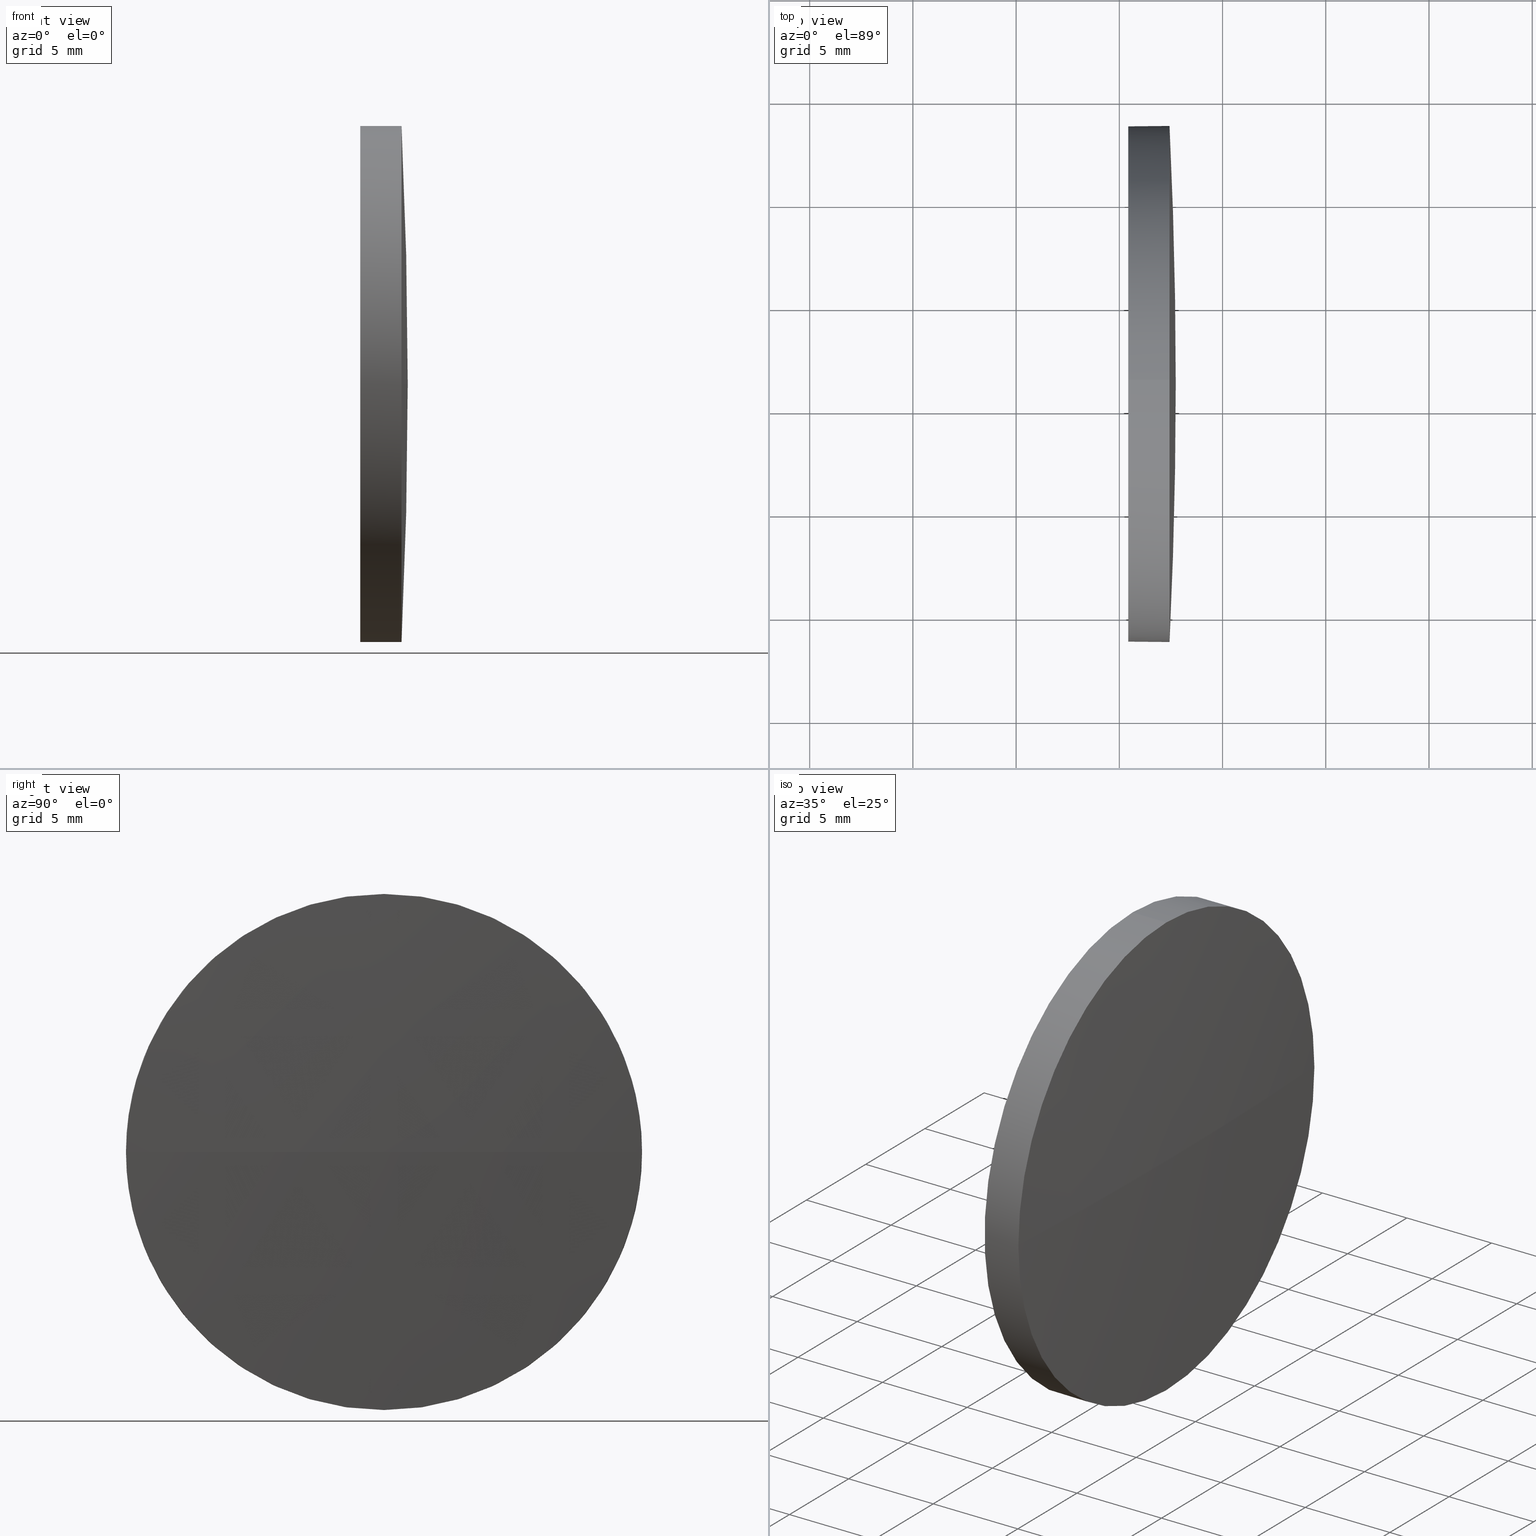
[diagram: canonical four-view strip — front | top / right | iso, engineering-drawing reading convention]
A machine part, canonical four-view strip (front | top / right | iso — engineering-drawing reading convention). The complete STEP part file that produces these views, byte-faithful:
ISO-10303-21;
HEADER;
FILE_DESCRIPTION (( 'STEP AP214' ),
    '1' );
FILE_NAME ('100223.STEP',
    '2019-05-24T03:11:32',
    ( '' ),
    ( '' ),
    'SwSTEP 2.0',
    'SolidWorks 2016',
    '' );
FILE_SCHEMA (( 'AUTOMOTIVE_DESIGN' ));
ENDSEC;

DATA;
#1 = CARTESIAN_POINT ( 'NONE',  ( 217.1658760232263000, 56.21778746480520500, 0.0000000000000000000 ) ) ;
#2 = DIRECTION ( 'NONE',  ( -1.000000000000000000, -0.0000000000000000000, -0.0000000000000000000 ) ) ;
#3 = EDGE_LOOP ( 'NONE', ( #134, #26, #88, #142 ) ) ;
#4 = DIRECTION ( 'NONE',  ( 0.0000000000000000000, 0.0000000000000000000, 1.000000000000000000 ) ) ;
#5 = DIRECTION ( 'NONE',  ( -0.0000000000000000000, 0.0000000000000000000, -1.000000000000000000 ) ) ;
#6 = STYLED_ITEM ( 'NONE', ( #151 ), #131 ) ;
#7 = ORIENTED_EDGE ( 'NONE', *, *, #44, .T. ) ;
#8 = DIRECTION ( 'NONE',  ( 0.0000000000000000000, 0.0000000000000000000, 1.000000000000000000 ) ) ;
#9 = DIRECTION ( 'NONE',  ( 0.0000000000000000000, 0.0000000000000000000, 1.000000000000000000 ) ) ;
#10 = DIRECTION ( 'NONE',  ( -1.000000000000000000, -0.0000000000000000000, -0.0000000000000000000 ) ) ;
#11 = EDGE_LOOP ( 'NONE', ( #125, #179, #38, #167 ) ) ;
#12 = CIRCLE ( 'NONE', #153, 12.50000000000000400 ) ;
#13 = AXIS2_PLACEMENT_3D ( 'NONE', #105, #4, #120 ) ;
#14 = FACE_OUTER_BOUND ( 'NONE', #3, .T. ) ;
#15 = CARTESIAN_POINT ( 'NONE',  ( 473.4034351114584600, 56.21778746480561000, -12.50000000000000400 ) ) ;
#16 = PRODUCT_RELATED_PRODUCT_CATEGORY ( 'part', '', ( #180 ) ) ;
#17 = CARTESIAN_POINT ( 'NONE',  ( 477.4325426898954600, 43.71778746480575300, -1.530808498934124900E-015 ) ) ;
#18 =( LENGTH_UNIT ( ) NAMED_UNIT ( * ) SI_UNIT ( .MILLI., .METRE. ) );
#19 = CARTESIAN_POINT ( 'NONE',  ( 477.4325426898954600, 56.21778746480561000, 0.0000000000000000000 ) ) ;
#20 =( NAMED_UNIT ( * ) PLANE_ANGLE_UNIT ( ) SI_UNIT ( $, .RADIAN. ) );
#21 = EDGE_CURVE ( 'NONE', #47, #127, #115, .T. ) ;
#22 = SPHERICAL_SURFACE ( 'NONE', #49, 260.5666666666690500 ) ;
#23 = ORIENTED_EDGE ( 'NONE', *, *, #21, .T. ) ;
#24 = MECHANICAL_DESIGN_GEOMETRIC_PRESENTATION_REPRESENTATION (  '', ( #6 ), #137 ) ;
#25 = CARTESIAN_POINT ( 'NONE',  ( 477.4325426898954600, 56.21778746480561000, 0.0000000000000000000 ) ) ;
#26 = ORIENTED_EDGE ( 'NONE', *, *, #143, .T. ) ;
#27 = PRODUCT_DEFINITION_SHAPE ( 'NONE', 'NONE',  #169 ) ;
#28 = AXIS2_PLACEMENT_3D ( 'NONE', #25, #139, #62 ) ;
#29 = UNCERTAINTY_MEASURE_WITH_UNIT (LENGTH_MEASURE( 1.000000000000000100E-005 ), #48, 'distance_accuracy_value', 'NONE');
#30 = PRESENTATION_STYLE_ASSIGNMENT (( #46 ) ) ;
#31 = ADVANCED_FACE ( 'NONE', ( #14 ), #22, .T. ) ;
#32 = ADVANCED_FACE ( 'NONE', ( #100 ), #141, .T. ) ;
#33 = CARTESIAN_POINT ( 'NONE',  ( 477.4325426898954600, 56.21778746480561000, 12.50000000000000400 ) ) ;
#34 = UNCERTAINTY_MEASURE_WITH_UNIT (LENGTH_MEASURE( 1.000000000000000100E-005 ), #18, 'distance_accuracy_value', 'NONE');
#35 = CIRCLE ( 'NONE', #74, 260.5666666666690500 ) ;
#36 = ORIENTED_EDGE ( 'NONE', *, *, #97, .T. ) ;
#37 = DIRECTION ( 'NONE',  ( -1.000000000000000000, -0.0000000000000000000, -0.0000000000000000000 ) ) ;
#38 = ORIENTED_EDGE ( 'NONE', *, *, #178, .F. ) ;
#39 = AXIS2_PLACEMENT_3D ( 'NONE', #138, #10, #98 ) ;
#40 = SHAPE_DEFINITION_REPRESENTATION ( #27, #171 ) ;
#41 = DIRECTION ( 'NONE',  ( 0.0000000000000000000, 1.224646799147353200E-016, -1.000000000000000000 ) ) ;
#42 = ADVANCED_FACE ( 'NONE', ( #102 ), #96, .T. ) ;
#43 = SURFACE_SIDE_STYLE ('',( #144 ) ) ;
#44 = EDGE_CURVE ( 'NONE', #145, #173, #12, .T. ) ;
#45 = DIRECTION ( 'NONE',  ( -0.0000000000000000000, 0.0000000000000000000, 1.000000000000000000 ) ) ;
#46 = SURFACE_STYLE_USAGE ( .BOTH. , #164 ) ;
#47 = VERTEX_POINT ( 'NONE', #111 ) ;
#48 =( LENGTH_UNIT ( ) NAMED_UNIT ( * ) SI_UNIT ( .MILLI., .METRE. ) );
#49 = AXIS2_PLACEMENT_3D ( 'NONE', #154, #5, #122 ) ;
#50 = COLOUR_RGB ( '',1.000000000000000000, 1.000000000000000000, 1.000000000000000000 ) ;
#51 = DIRECTION ( 'NONE',  ( -1.000000000000000000, -0.0000000000000000000, -0.0000000000000000000 ) ) ;
#52 = CARTESIAN_POINT ( 'NONE',  ( 477.4325426898954600, 56.21778746480561000, 0.0000000000000000000 ) ) ;
#53 = FACE_OUTER_BOUND ( 'NONE', #174, .T. ) ;
#54 = EDGE_CURVE ( 'NONE', #173, #57, #172, .T. ) ;
#55 = CIRCLE ( 'NONE', #28, 12.50000000000000400 ) ;
#56 = FILL_AREA_STYLE ('',( #119 ) ) ;
#57 = VERTEX_POINT ( 'NONE', #168 ) ;
#58 = PRODUCT_DEFINITION_CONTEXT ( 'detailed design', #166, 'design' ) ;
#59 = DIRECTION ( 'NONE',  ( 0.0000000000000000000, 1.000000000000000000, 0.0000000000000000000 ) ) ;
#60 = CARTESIAN_POINT ( 'NONE',  ( 475.4325426898954600, 56.21778746480561000, 0.0000000000000000000 ) ) ;
#61 =( LENGTH_UNIT ( ) NAMED_UNIT ( * ) SI_UNIT ( .MILLI., .METRE. ) );
#62 = DIRECTION ( 'NONE',  ( 0.0000000000000000000, 0.0000000000000000000, 1.000000000000000000 ) ) ;
#63 = COLOUR_RGB ( '',1.000000000000000000, 1.000000000000000000, 1.000000000000000000 ) ;
#64 = AXIS2_PLACEMENT_3D ( 'NONE', #160, #147, #81 ) ;
#65 = PRODUCT_CONTEXT ( 'NONE', #176, 'mechanical' ) ;
#66 = ORIENTED_EDGE ( 'NONE', *, *, #178, .T. ) ;
#67 = CARTESIAN_POINT ( 'NONE',  ( 477.4325426898954600, 56.21778746480561000, 0.0000000000000000000 ) ) ;
#68 = AXIS2_PLACEMENT_3D ( 'NONE', #110, #51, #170 ) ;
#69 = DIRECTION ( 'NONE',  ( 0.0000000000000000000, 0.0000000000000000000, 1.000000000000000000 ) ) ;
#70 = SURFACE_STYLE_FILL_AREA ( #95 ) ;
#71 = VECTOR ( 'NONE', #2, 1000.000000000000000 ) ;
#72 = PRESENTATION_LAYER_ASSIGNMENT (  '', '', ( #158 ) ) ;
#73 = EDGE_CURVE ( 'NONE', #183, #145, #55, .T. ) ;
#74 = AXIS2_PLACEMENT_3D ( 'NONE', #90, #41, #107 ) ;
#75 = EDGE_LOOP ( 'NONE', ( #113, #66, #124, #36, #121 ) ) ;
#76 = SPHERICAL_SURFACE ( 'NONE', #184, 260.5666666666690500 ) ;
#77 = ADVANCED_FACE ( 'NONE', ( #53 ), #162, .F. ) ;
#78 = DIRECTION ( 'NONE',  ( 1.000000000000000000, 0.0000000000000000000, 0.0000000000000000000 ) ) ;
#79 = AXIS2_PLACEMENT_3D ( 'NONE', #60, #163, #148 ) ;
#80 = FILL_AREA_STYLE_COLOUR ( '', #63 ) ;
#81 = DIRECTION ( 'NONE',  ( 0.0000000000000000000, 0.0000000000000000000, 1.000000000000000000 ) ) ;
#82 = LINE ( 'NONE', #15, #89 ) ;
#83 =( NAMED_UNIT ( * ) SI_UNIT ( $, .STERADIAN. ) SOLID_ANGLE_UNIT ( ) );
#84 = CIRCLE ( 'NONE', #106, 260.5666666666690500 ) ;
#85 = EDGE_CURVE ( 'NONE', #57, #127, #82, .T. ) ;
#86 = DIRECTION ( 'NONE',  ( -1.000000000000000000, -0.0000000000000000000, -0.0000000000000000000 ) ) ;
#87 = PRESENTATION_LAYER_ASSIGNMENT (  '', '', ( #6 ) ) ;
#88 = ORIENTED_EDGE ( 'NONE', *, *, #44, .F. ) ;
#89 = VECTOR ( 'NONE', #130, 1000.000000000000000 ) ;
#90 = CARTESIAN_POINT ( 'NONE',  ( 217.1658760232263000, 56.21778746480520500, 0.0000000000000000000 ) ) ;
#91 = DIRECTION ( 'NONE',  ( -0.0000000000000000000, 0.0000000000000000000, -1.000000000000000000 ) ) ;
#92 = UNCERTAINTY_MEASURE_WITH_UNIT (LENGTH_MEASURE( 1.000000000000000100E-005 ), #61, 'distance_accuracy_value', 'NONE');
#93 = EDGE_CURVE ( 'NONE', #127, #47, #109, .T. ) ;
#94 = CARTESIAN_POINT ( 'NONE',  ( 473.4034351114584600, 56.21778746480561000, 12.50000000000000400 ) ) ;
#95 = FILL_AREA_STYLE ('',( #80 ) ) ;
#96 = CYLINDRICAL_SURFACE ( 'NONE', #68, 12.50000000000000400 ) ;
#97 = EDGE_CURVE ( 'NONE', #145, #47, #156, .T. ) ;
#98 = DIRECTION ( 'NONE',  ( 0.0000000000000000000, 0.0000000000000000000, 1.000000000000000000 ) ) ;
#99 = CIRCLE ( 'NONE', #114, 12.50000000000000400 ) ;
#100 = FACE_OUTER_BOUND ( 'NONE', #75, .T. ) ;
#101 = ORIENTED_EDGE ( 'NONE', *, *, #54, .T. ) ;
#102 = FACE_OUTER_BOUND ( 'NONE', #135, .T. ) ;
#103 = ORIENTED_EDGE ( 'NONE', *, *, #21, .F. ) ;
#104 = CARTESIAN_POINT ( 'NONE',  ( 217.1658760232263000, 56.21778746480520500, 0.0000000000000000000 ) ) ;
#105 = CARTESIAN_POINT ( 'NONE',  ( 0.0000000000000000000, 0.0000000000000000000, 0.0000000000000000000 ) ) ;
#106 = AXIS2_PLACEMENT_3D ( 'NONE', #1, #45, #78 ) ;
#107 = DIRECTION ( 'NONE',  ( 0.0000000000000000000, 1.000000000000000000, 1.224646799147353200E-016 ) ) ;
#108 =( NAMED_UNIT ( * ) SI_UNIT ( $, .STERADIAN. ) SOLID_ANGLE_UNIT ( ) );
#109 = CIRCLE ( 'NONE', #64, 12.50000000000000400 ) ;
#110 = CARTESIAN_POINT ( 'NONE',  ( 473.4034351114584600, 56.21778746480561000, 0.0000000000000000000 ) ) ;
#111 = CARTESIAN_POINT ( 'NONE',  ( 475.4325426898954600, 56.21778746480561000, 12.50000000000000400 ) ) ;
#112 = VERTEX_POINT ( 'NONE', #117 ) ;
#113 = ORIENTED_EDGE ( 'NONE', *, *, #85, .F. ) ;
#114 = AXIS2_PLACEMENT_3D ( 'NONE', #19, #118, #152 ) ;
#115 = CIRCLE ( 'NONE', #161, 12.50000000000000400 ) ;
#116 = SURFACE_STYLE_USAGE ( .BOTH. , #43 ) ;
#117 = CARTESIAN_POINT ( 'NONE',  ( 477.7325426898954100, 56.21778746480522000, 0.0000000000000000000 ) ) ;
#118 = DIRECTION ( 'NONE',  ( -1.000000000000000000, -0.0000000000000000000, -0.0000000000000000000 ) ) ;
#119 = FILL_AREA_STYLE_COLOUR ( '', #50 ) ;
#120 = DIRECTION ( 'NONE',  ( 1.000000000000000000, 0.0000000000000000000, 0.0000000000000000000 ) ) ;
#121 = ORIENTED_EDGE ( 'NONE', *, *, #93, .F. ) ;
#122 = DIRECTION ( 'NONE',  ( 0.0000000000000000000, 1.000000000000000000, 0.0000000000000000000 ) ) ;
#123 = MECHANICAL_DESIGN_GEOMETRIC_PRESENTATION_REPRESENTATION (  '', ( #158 ), #157 ) ;
#124 = ORIENTED_EDGE ( 'NONE', *, *, #73, .T. ) ;
#125 = ORIENTED_EDGE ( 'NONE', *, *, #143, .F. ) ;
#126 = AXIS2_PLACEMENT_3D ( 'NONE', #52, #86, #8 ) ;
#127 = VERTEX_POINT ( 'NONE', #132 ) ;
#128 = EDGE_CURVE ( 'NONE', #112, #183, #35, .T. ) ;
#129 = ORIENTED_EDGE ( 'NONE', *, *, #85, .T. ) ;
#130 = DIRECTION ( 'NONE',  ( -1.000000000000000000, -0.0000000000000000000, -0.0000000000000000000 ) ) ;
#131 = MANIFOLD_SOLID_BREP ( '��ת1', #182 ) ;
#132 = CARTESIAN_POINT ( 'NONE',  ( 475.4325426898954600, 56.21778746480561000, -12.50000000000000400 ) ) ;
#133 = APPLICATION_PROTOCOL_DEFINITION ( 'draft international standard', 'automotive_design', 1998, #176 ) ;
#134 = ORIENTED_EDGE ( 'NONE', *, *, #128, .F. ) ;
#135 = EDGE_LOOP ( 'NONE', ( #101, #129, #103, #159, #7 ) ) ;
#136 = DIRECTION ( 'NONE',  ( -1.000000000000000000, -0.0000000000000000000, -0.0000000000000000000 ) ) ;
#137 =( GEOMETRIC_REPRESENTATION_CONTEXT ( 3 ) GLOBAL_UNCERTAINTY_ASSIGNED_CONTEXT ( ( #92 ) ) GLOBAL_UNIT_ASSIGNED_CONTEXT ( ( #61, #149, #175 ) ) REPRESENTATION_CONTEXT ( 'NONE', 'WORKASPACE' ) );
#138 = CARTESIAN_POINT ( 'NONE',  ( 473.4034351114584600, 56.21778746480561000, 0.0000000000000000000 ) ) ;
#139 = DIRECTION ( 'NONE',  ( -1.000000000000000000, -0.0000000000000000000, -0.0000000000000000000 ) ) ;
#140 = PRODUCT_DEFINITION_FORMATION_WITH_SPECIFIED_SOURCE ( '�κ�', '', #180, .NOT_KNOWN. ) ;
#141 = CYLINDRICAL_SURFACE ( 'NONE', #39, 12.50000000000000400 ) ;
#142 = ORIENTED_EDGE ( 'NONE', *, *, #73, .F. ) ;
#143 = EDGE_CURVE ( 'NONE', #112, #173, #84, .T. ) ;
#144 = SURFACE_STYLE_FILL_AREA ( #56 ) ;
#145 = VERTEX_POINT ( 'NONE', #33 ) ;
#146 = ADVANCED_FACE ( 'NONE', ( #185 ), #76, .T. ) ;
#147 = DIRECTION ( 'NONE',  ( -1.000000000000000000, -0.0000000000000000000, -0.0000000000000000000 ) ) ;
#148 = DIRECTION ( 'NONE',  ( 0.0000000000000000000, 0.0000000000000000000, -1.000000000000000000 ) ) ;
#149 =( NAMED_UNIT ( * ) PLANE_ANGLE_UNIT ( ) SI_UNIT ( $, .RADIAN. ) );
#150 =( NAMED_UNIT ( * ) PLANE_ANGLE_UNIT ( ) SI_UNIT ( $, .RADIAN. ) );
#151 = PRESENTATION_STYLE_ASSIGNMENT (( #116 ) ) ;
#152 = DIRECTION ( 'NONE',  ( 0.0000000000000000000, 0.0000000000000000000, 1.000000000000000000 ) ) ;
#153 = AXIS2_PLACEMENT_3D ( 'NONE', #67, #37, #9 ) ;
#154 = CARTESIAN_POINT ( 'NONE',  ( 217.1658760232263000, 56.21778746480520500, 0.0000000000000000000 ) ) ;
#155 =( GEOMETRIC_REPRESENTATION_CONTEXT ( 3 ) GLOBAL_UNCERTAINTY_ASSIGNED_CONTEXT ( ( #34 ) ) GLOBAL_UNIT_ASSIGNED_CONTEXT ( ( #18, #150, #108 ) ) REPRESENTATION_CONTEXT ( 'NONE', 'WORKASPACE' ) );
#156 = LINE ( 'NONE', #94, #71 ) ;
#157 =( GEOMETRIC_REPRESENTATION_CONTEXT ( 3 ) GLOBAL_UNCERTAINTY_ASSIGNED_CONTEXT ( ( #29 ) ) GLOBAL_UNIT_ASSIGNED_CONTEXT ( ( #48, #20, #83 ) ) REPRESENTATION_CONTEXT ( 'NONE', 'WORKASPACE' ) );
#158 = STYLED_ITEM ( 'NONE', ( #30 ), #171 ) ;
#159 = ORIENTED_EDGE ( 'NONE', *, *, #97, .F. ) ;
#160 = CARTESIAN_POINT ( 'NONE',  ( 475.4325426898954600, 56.21778746480561000, 0.0000000000000000000 ) ) ;
#161 = AXIS2_PLACEMENT_3D ( 'NONE', #181, #136, #69 ) ;
#162 = PLANE ( 'NONE',  #79 ) ;
#163 = DIRECTION ( 'NONE',  ( 1.000000000000000000, 0.0000000000000000000, 0.0000000000000000000 ) ) ;
#164 = SURFACE_SIDE_STYLE ('',( #70 ) ) ;
#165 = ORIENTED_EDGE ( 'NONE', *, *, #93, .T. ) ;
#166 = APPLICATION_CONTEXT ( 'automotive_design' ) ;
#167 = ORIENTED_EDGE ( 'NONE', *, *, #54, .F. ) ;
#168 = CARTESIAN_POINT ( 'NONE',  ( 477.4325426898954600, 56.21778746480561000, -12.50000000000000400 ) ) ;
#169 = PRODUCT_DEFINITION ( 'δ֪', '', #140, #58 ) ;
#170 = DIRECTION ( 'NONE',  ( 0.0000000000000000000, 0.0000000000000000000, 1.000000000000000000 ) ) ;
#171 = ADVANCED_BREP_SHAPE_REPRESENTATION ( '100223', ( #131, #13 ), #155 ) ;
#172 = CIRCLE ( 'NONE', #126, 12.50000000000000400 ) ;
#173 = VERTEX_POINT ( 'NONE', #186 ) ;
#174 = EDGE_LOOP ( 'NONE', ( #23, #165 ) ) ;
#175 =( NAMED_UNIT ( * ) SI_UNIT ( $, .STERADIAN. ) SOLID_ANGLE_UNIT ( ) );
#176 = APPLICATION_CONTEXT ( 'automotive_design' ) ;
#177 = APPLICATION_PROTOCOL_DEFINITION ( 'draft international standard', 'automotive_design', 1998, #166 ) ;
#178 = EDGE_CURVE ( 'NONE', #57, #183, #99, .T. ) ;
#179 = ORIENTED_EDGE ( 'NONE', *, *, #128, .T. ) ;
#180 = PRODUCT ( '100223', '100223', '', ( #65 ) ) ;
#181 = CARTESIAN_POINT ( 'NONE',  ( 475.4325426898954600, 56.21778746480561000, 0.0000000000000000000 ) ) ;
#182 = CLOSED_SHELL ( 'NONE', ( #42, #146, #31, #32, #77 ) ) ;
#183 = VERTEX_POINT ( 'NONE', #17 ) ;
#184 = AXIS2_PLACEMENT_3D ( 'NONE', #104, #91, #59 ) ;
#185 = FACE_OUTER_BOUND ( 'NONE', #11, .T. ) ;
#186 = CARTESIAN_POINT ( 'NONE',  ( 477.4325426898954600, 68.71778746480505600, 0.0000000000000000000 ) ) ;
ENDSEC;
END-ISO-10303-21;
